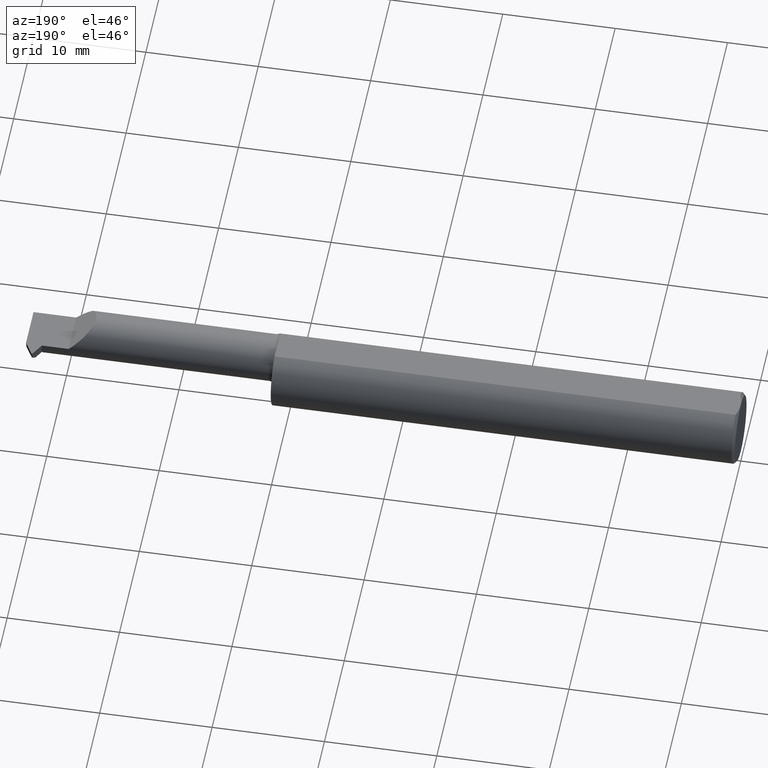
[diagram: clean part render]
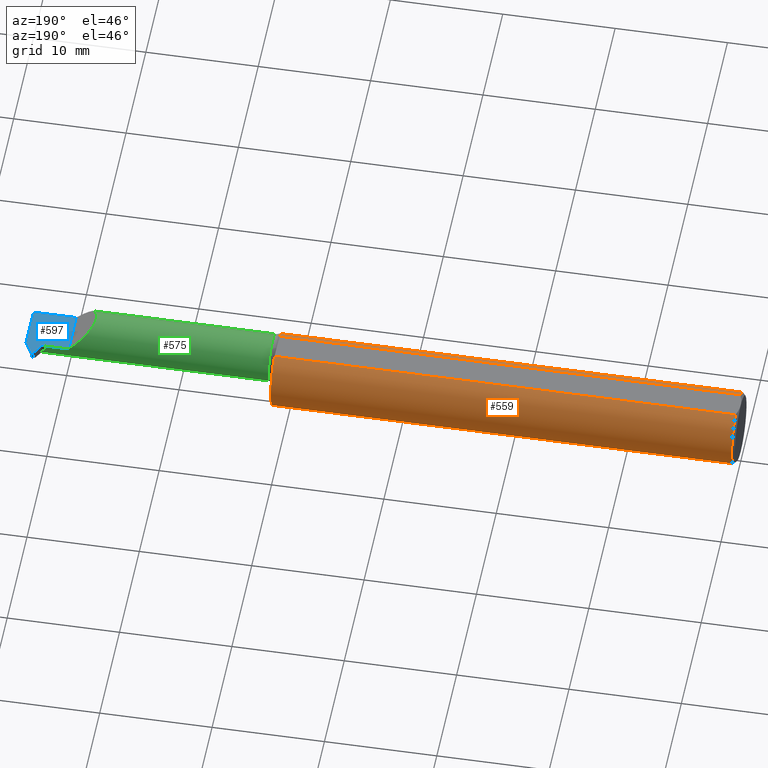
[diagram: same view with three faces highlighted in distinct colors, each labeled with its STEP entity id]
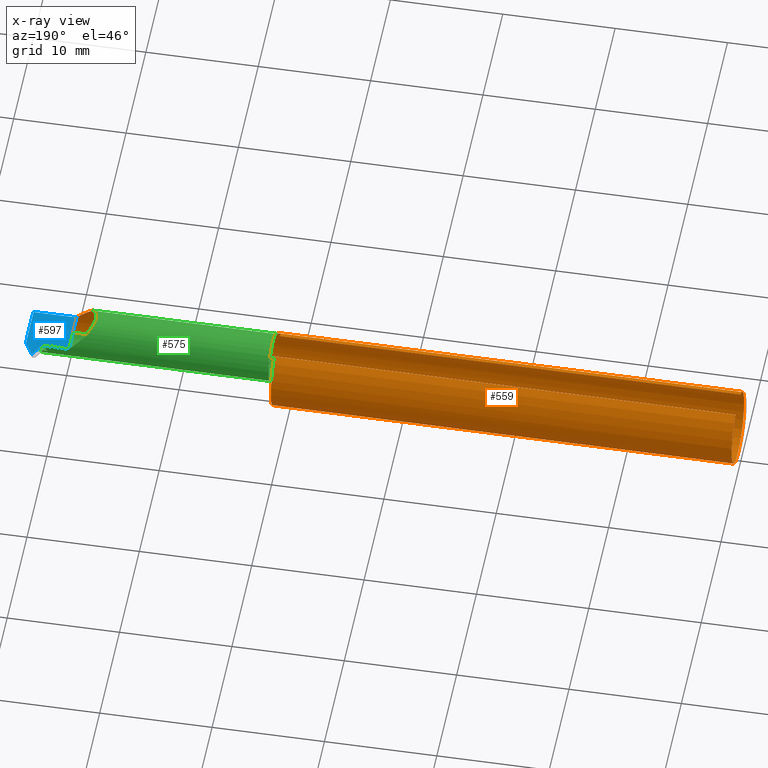
[diagram: x-ray of the same camera — body ghosted, the three highlighted faces saturated]
A machine part, auxiliary view with three faces highlighted in distinct colors.
The next image is the same camera in x-ray (body ghosted, the three faces saturated) — at least one of them is partly hidden behind the body in this view.
Their STEP definitions:

[orange] entity #559 — the highlighted cylindrical surface (edge-blend (fillet) strip) has radius 3.1712 mm, axis along (-1, -0, -0).
#11 = LINE ( 'NONE', #623, #122 ) ;
#16 = CARTESIAN_POINT ( 'NONE',  ( 0.01000000000000014939, 0.04895916665957469188, 0.1148499999999999521 ) ) ;
#21 = ORIENTED_EDGE ( 'NONE', *, *, #359, .F. ) ;
#22 = EDGE_CURVE ( 'NONE', #464, #62, #31, .T. ) ;
#27 = CARTESIAN_POINT ( 'NONE',  ( 1.625000000000000222, 0.000000000000000000, 0.000000000000000000 ) ) ;
#31 = B_SPLINE_CURVE_WITH_KNOTS ( 'NONE', 3,
 ( #235, #283, #782, #660, #123, #355, #490, #233, #358, #186, #727, #182 ),
 .UNSPECIFIED., .F., .F.,
 ( 4, 2, 2, 2, 2, 4 ),
 ( 1.963893730206868762E-07, 0.0002326901895015452302, 0.0004651839896300697676, 0.0009301715898871187882, 0.001395159190144167755, 0.001860146790401217371 ),
 .UNSPECIFIED. ) ;
#34 = CARTESIAN_POINT ( 'NONE',  ( 1.638167052038310478, -0.1047260336402098813, 0.06802262465471402286 ) ) ;
#45 = CARTESIAN_POINT ( 'NONE',  ( 1.625000000000000222, -0.06535139275766012334, 0.1063800637555460948 ) ) ;
#56 = EDGE_CURVE ( 'NONE', #240, #464, #731, .T. ) ;
#62 = VERTEX_POINT ( 'NONE', #106 ) ;
#63 = CYLINDRICAL_SURFACE ( 'NONE', #586, 0.1248500000000000026 ) ;
#64 = CIRCLE ( 'NONE', #100, 0.1248500000000000026 ) ;
#69 = CARTESIAN_POINT ( 'NONE',  ( 0.000000000000000000, -0.04895916665957469188, 0.1148499999999999521 ) ) ;
#76 = DIRECTION ( 'NONE',  ( 0.000000000000000000, 0.000000000000000000, 1.000000000000000000 ) ) ;
#81 = DIRECTION ( 'NONE',  ( 1.000000000000000000, 0.000000000000000000, 0.000000000000000000 ) ) ;
#86 = ORIENTED_EDGE ( 'NONE', *, *, #426, .T. ) ;
#92 = CARTESIAN_POINT ( 'NONE',  ( 1.650000000000000133, -0.1092232590529245845, 0.06047976671464373039 ) ) ;
#97 = DIRECTION ( 'NONE',  ( 0.000000000000000000, 0.000000000000000000, -1.000000000000000000 ) ) ;
#100 = AXIS2_PLACEMENT_3D ( 'NONE', #27, #517, #526 ) ;
#102 = CARTESIAN_POINT ( 'NONE',  ( 1.650000000000000133, -0.1092232590529245845, -0.06047976671464375814 ) ) ;
#105 = CARTESIAN_POINT ( 'NONE',  ( 2.308130552538913527, -0.1195282781184591331, 0.04186944746108606924 ) ) ;
#106 = CARTESIAN_POINT ( 'NONE',  ( 1.625000000000000222, -0.06535139275766012334, -0.1063800637555460948 ) ) ;
#110 = AXIS2_PLACEMENT_3D ( 'NONE', #437, #617, #76 ) ;
#115 = CARTESIAN_POINT ( 'NONE',  ( 2.328727073528534586, -0.1248500000000000026, 0.02127292647146517696 ) ) ;
#122 = VECTOR ( 'NONE', #195, 39.37007874015748143 ) ;
#123 = CARTESIAN_POINT ( 'NONE',  ( 1.638158879394964629, -0.1047178258151589963, -0.06803468955078927072 ) ) ;
#125 = DIRECTION ( 'NONE',  ( 0.000000000000000000, 0.000000000000000000, 1.000000000000000000 ) ) ;
#128 = DIRECTION ( 'NONE',  ( -1.000000000000000000, -0.000000000000000000, -0.000000000000000000 ) ) ;
#133 = CARTESIAN_POINT ( 'NONE',  ( 1.625000000000000222, -0.04895916665957479597, 0.1148499999999999521 ) ) ;
#145 = CARTESIAN_POINT ( 'NONE',  ( 1.644142011591955610, -0.1083236330372056855, 0.06211474020592992057 ) ) ;
#158 = VERTEX_POINT ( 'NONE', #557 ) ;
#162 = EDGE_CURVE ( 'NONE', #467, #199, #11, .T. ) ;
#166 = CARTESIAN_POINT ( 'NONE',  ( 0.01000000000000014939, -0.04895916665957469188, 0.1148499999999999521 ) ) ;
#181 = DIRECTION ( 'NONE',  ( 0.000000000000000000, 1.000000000000000000, 0.000000000000000000 ) ) ;
#182 = CARTESIAN_POINT ( 'NONE',  ( 1.625000000000000222, -0.06535139275766012334, -0.1063800637555460948 ) ) ;
#186 = CARTESIAN_POINT ( 'NONE',  ( 1.625408339284914794, -0.07550530485030243488, -0.09961131850206345062 ) ) ;
#191 = EDGE_CURVE ( 'NONE', #240, #634, #699, .T. ) ;
#195 = DIRECTION ( 'NONE',  ( -1.000000000000000000, -0.000000000000000000, -0.000000000000000000 ) ) ;
#196 = ORIENTED_EDGE ( 'NONE', *, *, #162, .F. ) ;
#199 = VERTEX_POINT ( 'NONE', #16 ) ;
#200 = CARTESIAN_POINT ( 'NONE',  ( 1.650000000000000133, -0.1092232590529245845, 0.06047976671464373039 ) ) ;
#207 = CIRCLE ( 'NONE', #339, 0.1248500000000000026 ) ;
#212 = CARTESIAN_POINT ( 'NONE',  ( 0.01000000000000014939, 0.000000000000000000, -0.1248500000000000026 ) ) ;
#214 = CARTESIAN_POINT ( 'NONE',  ( 1.626996939049467628, -0.08458882217984108054, 0.09202120527030370478 ) ) ;
#223 = CARTESIAN_POINT ( 'NONE',  ( 1.625400300771548068, -0.07542150831050739579, 0.09967330204894490897 ) ) ;
#233 = CARTESIAN_POINT ( 'NONE',  ( 1.628216217036756674, -0.08893970397226953761, -0.08781254252886017131 ) ) ;
#235 = CARTESIAN_POINT ( 'NONE',  ( 1.650000000000000133, -0.1092232590529245845, -0.06047976671464375814 ) ) ;
#240 = VERTEX_POINT ( 'NONE', #371 ) ;
#241 = CARTESIAN_POINT ( 'NONE',  ( 1.625000000000000222, 0.000000000000000000, 0.000000000000000000 ) ) ;
#246 = EDGE_CURVE ( 'NONE', #427, #551, #494, .T. ) ;
#247 = ORIENTED_EDGE ( 'NONE', *, *, #515, .F. ) ;
#250 = ORIENTED_EDGE ( 'NONE', *, *, #484, .T. ) ;
#253 = CARTESIAN_POINT ( 'NONE',  ( 2.500000000000000000, -0.1248500000000000026, 0.000000000000000000 ) ) ;
#269 = LINE ( 'NONE', #462, #523 ) ;
#273 = CARTESIAN_POINT ( 'NONE',  ( 1.625000000000000666, -0.07054241148902913594, 0.1031911175192887220 ) ) ;
#282 = CARTESIAN_POINT ( 'NONE',  ( 2.289520233285355921, -0.1092232590529246122, 0.06047976671464368875 ) ) ;
#283 = CARTESIAN_POINT ( 'NONE',  ( 1.646893101175497476, -0.1092232590529246261, -0.06047976671464372345 ) ) ;
#287 = CARTESIAN_POINT ( 'NONE',  ( 2.289520233285355921, -0.1092232590529246122, 0.06047976671464368875 ) ) ;
#293 = DIRECTION ( 'NONE',  ( 1.000000000000000000, 5.250126673606354578E-17, 0.000000000000000000 ) ) ;
#309 = EDGE_CURVE ( 'NONE', #427, #784, #666, .T. ) ;
#317 = EDGE_LOOP ( 'NONE', ( #343, #716, #672, #86, #524, #21, #795, #602, #706, #250, #196, #247, #364 ) ) ;
#335 = EDGE_CURVE ( 'NONE', #634, #158, #269, .T. ) ;
#339 = AXIS2_PLACEMENT_3D ( 'NONE', #544, #480, #659 ) ;
#341 = CARTESIAN_POINT ( 'NONE',  ( 1.625000000000000222, 0.04895916665957469188, 0.1148499999999999521 ) ) ;
#342 = EDGE_CURVE ( 'NONE', #551, #438, #64, .T. ) ;
#343 = ORIENTED_EDGE ( 'NONE', *, *, #56, .F. ) ;
#355 = CARTESIAN_POINT ( 'NONE',  ( 1.633707043473947795, -0.1002470790731816441, -0.07460645910502533562 ) ) ;
#358 = CARTESIAN_POINT ( 'NONE',  ( 1.627023439373509905, -0.08470251846230689163, -0.09191816578021552719 ) ) ;
#359 = EDGE_CURVE ( 'NONE', #438, #626, #360, .T. ) ;
#360 = B_SPLINE_CURVE_WITH_KNOTS ( 'NONE', 3,
 ( #761, #273, #223, #214, #519, #758, #763, #34, #522, #145, #632, #92 ),
 .UNSPECIFIED., .F., .F.,
 ( 4, 2, 2, 2, 2, 4 ),
 ( 3.030490085918935252E-05, 0.0004889370798616827487, 0.0009475692588641760738, 0.001406201437866669507, 0.001635517527367915790, 0.001864833616869162073 ),
 .UNSPECIFIED. ) ;
#364 = ORIENTED_EDGE ( 'NONE', *, *, #22, .F. ) ;
#365 = VECTOR ( 'NONE', #786, 39.37007874015748143 ) ;
#371 = CARTESIAN_POINT ( 'NONE',  ( 2.500000000000000000, -0.1092232590529245845, -0.06047976671464362630 ) ) ;
#382 = DIRECTION ( 'NONE',  ( 1.000000000000000000, 0.000000000000000000, 0.000000000000000000 ) ) ;
#391 = EDGE_CURVE ( 'NONE', #626, #470, #707, .T. ) ;
#396 = CARTESIAN_POINT ( 'NONE',  ( 2.044015190534282489, -0.1092232590529246122, 0.06047976671464369569 ) ) ;
#426 = EDGE_CURVE ( 'NONE', #158, #470, #796, .T. ) ;
#427 = VERTEX_POINT ( 'NONE', #166 ) ;
#437 = CARTESIAN_POINT ( 'NONE',  ( 2.500000000000000000, 0.000000000000000000, 0.000000000000000000 ) ) ;
#438 = VERTEX_POINT ( 'NONE', #45 ) ;
#462 = CARTESIAN_POINT ( 'NONE',  ( 3.749399456654640735E-32, -0.1248499999999999888, 3.061616997868381169E-16 ) ) ;
#464 = VERTEX_POINT ( 'NONE', #102 ) ;
#467 = VERTEX_POINT ( 'NONE', #341 ) ;
#470 = VERTEX_POINT ( 'NONE', #287 ) ;
#480 = DIRECTION ( 'NONE',  ( 1.000000000000000000, 0.000000000000000000, 0.000000000000000000 ) ) ;
#484 = EDGE_CURVE ( 'NONE', #784, #199, #207, .T. ) ;
#490 = CARTESIAN_POINT ( 'NONE',  ( 1.631574539397729673, -0.09671433139090018782, -0.07916850176471039446 ) ) ;
#494 = LINE ( 'NONE', #69, #637 ) ;
#502 = CARTESIAN_POINT ( 'NONE',  ( 0.000000000000000000, 0.000000000000000000, 0.000000000000000000 ) ) ;
#506 = VECTOR ( 'NONE', #719, 39.37007874015748143 ) ;
#514 = DIRECTION ( 'NONE',  ( -1.000000000000000000, -0.000000000000000000, -0.000000000000000000 ) ) ;
#515 = EDGE_CURVE ( 'NONE', #62, #467, #755, .T. ) ;
#517 = DIRECTION ( 'NONE',  ( 1.000000000000000000, 5.250126673606354578E-17, 0.000000000000000000 ) ) ;
#519 = CARTESIAN_POINT ( 'NONE',  ( 1.628207506445968011, -0.08891621056625824415, 0.08783733555405201510 ) ) ;
#522 = CARTESIAN_POINT ( 'NONE',  ( 1.639872773867705913, -0.1060950243526074810, 0.06584904124472104603 ) ) ;
#523 = VECTOR ( 'NONE', #514, 39.37007874015748143 ) ;
#524 = ORIENTED_EDGE ( 'NONE', *, *, #391, .F. ) ;
#526 = DIRECTION ( 'NONE',  ( 0.000000000000000000, 1.000000000000000000, 0.000000000000000000 ) ) ;
#544 = CARTESIAN_POINT ( 'NONE',  ( 0.01000000000000014939, 0.000000000000000000, 0.000000000000000000 ) ) ;
#551 = VERTEX_POINT ( 'NONE', #133 ) ;
#557 = CARTESIAN_POINT ( 'NONE',  ( 2.350000000000000089, -0.1248500000000000165, 1.836970198721029441E-17 ) ) ;
#559 = ADVANCED_FACE ( 'NONE', ( #622 ), #63, .T. ) ;
#586 = AXIS2_PLACEMENT_3D ( 'NONE', #502, #128, #125 ) ;
#602 = ORIENTED_EDGE ( 'NONE', *, *, #246, .F. ) ;
#613 = AXIS2_PLACEMENT_3D ( 'NONE', #241, #293, #181 ) ;
#617 = DIRECTION ( 'NONE',  ( -1.000000000000000000, -0.000000000000000000, -0.000000000000000000 ) ) ;
#622 = FACE_OUTER_BOUND ( 'NONE', #317, .T. ) ;
#623 = CARTESIAN_POINT ( 'NONE',  ( 0.000000000000000000, 0.04895916665957469188, 0.1148499999999999521 ) ) ;
#626 = VERTEX_POINT ( 'NONE', #200 ) ;
#632 = CARTESIAN_POINT ( 'NONE',  ( 1.646904167968482824, -0.1092232590529396835, 0.06047976671461666870 ) ) ;
#634 = VERTEX_POINT ( 'NONE', #253 ) ;
#637 = VECTOR ( 'NONE', #81, 39.37007874015748143 ) ;
#646 = CARTESIAN_POINT ( 'NONE',  ( 0.01000000000000014939, 0.000000000000000000, 0.000000000000000000 ) ) ;
#659 = DIRECTION ( 'NONE',  ( 0.000000000000000000, 0.000000000000000000, -1.000000000000000000 ) ) ;
#660 = CARTESIAN_POINT ( 'NONE',  ( 1.639871114993082468, -0.1060941439957361898, -0.06585051326907734315 ) ) ;
#666 = CIRCLE ( 'NONE', #768, 0.1248500000000000026 ) ;
#672 = ORIENTED_EDGE ( 'NONE', *, *, #335, .T. ) ;
#699 = CIRCLE ( 'NONE', #110, 0.1248500000000000026 ) ;
#706 = ORIENTED_EDGE ( 'NONE', *, *, #309, .T. ) ;
#707 = LINE ( 'NONE', #396, #365 ) ;
#716 = ORIENTED_EDGE ( 'NONE', *, *, #191, .T. ) ;
#719 = DIRECTION ( 'NONE',  ( -1.000000000000000000, -5.250126673606354578E-17, -0.000000000000000000 ) ) ;
#723 = CARTESIAN_POINT ( 'NONE',  ( 2.044015190534282489, -0.1092232590529246122, -0.06047976671464369569 ) ) ;
#726 = CARTESIAN_POINT ( 'NONE',  ( 2.350000000000000089, -0.1248500000000000165, 1.836970198721029441E-17 ) ) ;
#727 = CARTESIAN_POINT ( 'NONE',  ( 1.624999999999999778, -0.07054286491584016439, -0.1031908389701642337 ) ) ;
#731 = LINE ( 'NONE', #723, #506 ) ;
#755 = CIRCLE ( 'NONE', #613, 0.1248500000000000026 ) ;
#758 = CARTESIAN_POINT ( 'NONE',  ( 1.631572284412210472, -0.09671242829710847977, 0.07917194093600943283 ) ) ;
#761 = CARTESIAN_POINT ( 'NONE',  ( 1.625000000000000222, -0.06535139275766012334, 0.1063800637555460948 ) ) ;
#763 = CARTESIAN_POINT ( 'NONE',  ( 1.633690689866804435, -0.1002306550648289635, 0.07463060118330293313 ) ) ;
#768 = AXIS2_PLACEMENT_3D ( 'NONE', #646, #382, #97 ) ;
#782 = CARTESIAN_POINT ( 'NONE',  ( 1.644143490399571750, -0.1083244193956948292, -0.06211342568700069233 ) ) ;
#784 = VERTEX_POINT ( 'NONE', #212 ) ;
#786 = DIRECTION ( 'NONE',  ( 1.000000000000000000, 5.250126673606354578E-17, 0.000000000000000000 ) ) ;
#795 = ORIENTED_EDGE ( 'NONE', *, *, #342, .F. ) ;
#796 =( BOUNDED_CURVE ( )  B_SPLINE_CURVE ( 3, ( #726, #115, #105, #282 ),
 .UNSPECIFIED., .F., .F. ) 
 B_SPLINE_CURVE_WITH_KNOTS ( ( 4, 4 ),
 ( 4.712388980384689674, 5.218088401039802093 ),
 .UNSPECIFIED. ) 
 CURVE ( )  GEOMETRIC_REPRESENTATION_ITEM ( )  RATIONAL_B_SPLINE_CURVE ( ( 1.000000000000000000, 0.9788023059027125550, 0.9788023059027125550, 1.000000000000000000 ) ) 
 REPRESENTATION_ITEM ( '' )  );

[blue] entity #597 — the highlighted planar face has unit normal (-0, 0, -1).
#28 = EDGE_CURVE ( 'NONE', #51, #748, #59, .T. ) ;
#42 = VECTOR ( 'NONE', #629, 39.37007874015748143 ) ;
#47 = DIRECTION ( 'NONE',  ( 1.000000000000000000, 5.250126673606354578E-17, 0.000000000000000000 ) ) ;
#51 = VERTEX_POINT ( 'NONE', #117 ) ;
#59 = LINE ( 'NONE', #473, #643 ) ;
#72 = DIRECTION ( 'NONE',  ( -1.224646799147352961E-16, 0.000000000000000000, -1.000000000000000000 ) ) ;
#74 = ORIENTED_EDGE ( 'NONE', *, *, #28, .F. ) ;
#80 = CARTESIAN_POINT ( 'NONE',  ( 2.433030381068565173, 0.02814999999999999447, 0.000000000000000000 ) ) ;
#90 = EDGE_CURVE ( 'NONE', #748, #157, #126, .T. ) ;
#93 = VECTOR ( 'NONE', #47, 39.37007874015748143 ) ;
#116 = VECTOR ( 'NONE', #274, 39.37007874015748143 ) ;
#117 = CARTESIAN_POINT ( 'NONE',  ( 2.443769237886467049, 0.02814999999999999100, 0.000000000000000000 ) ) ;
#126 = LINE ( 'NONE', #429, #93 ) ;
#140 = CARTESIAN_POINT ( 'NONE',  ( 2.500000000000000000, 0.02508559008996252837, 0.000000000000000000 ) ) ;
#146 = ORIENTED_EDGE ( 'NONE', *, *, #478, .F. ) ;
#153 = CARTESIAN_POINT ( 'NONE',  ( 2.500000000000000000, 0.000000000000000000, 0.000000000000000000 ) ) ;
#157 = VERTEX_POINT ( 'NONE', #503 ) ;
#158 = VERTEX_POINT ( 'NONE', #557 ) ;
#168 = DIRECTION ( 'NONE',  ( 0.4999999999999963918, 0.8660254037844405950, -0.000000000000000000 ) ) ;
#194 = FACE_OUTER_BOUND ( 'NONE', #280, .T. ) ;
#219 = DIRECTION ( 'NONE',  ( 0.000000000000000000, -1.000000000000000000, 0.000000000000000000 ) ) ;
#220 = VERTEX_POINT ( 'NONE', #140 ) ;
#231 = EDGE_CURVE ( 'NONE', #648, #51, #363, .T. ) ;
#253 = CARTESIAN_POINT ( 'NONE',  ( 2.500000000000000000, -0.1248500000000000026, 0.000000000000000000 ) ) ;
#256 = ORIENTED_EDGE ( 'NONE', *, *, #231, .F. ) ;
#264 = ORIENTED_EDGE ( 'NONE', *, *, #387, .F. ) ;
#269 = LINE ( 'NONE', #462, #523 ) ;
#274 = DIRECTION ( 'NONE',  ( 1.000000000000000000, 5.250126673606354578E-17, 0.000000000000000000 ) ) ;
#280 = EDGE_LOOP ( 'NONE', ( #356, #74, #256, #460, #588, #572, #264, #146 ) ) ;
#284 = EDGE_CURVE ( 'NONE', #735, #648, #453, .T. ) ;
#290 = LINE ( 'NONE', #418, #652 ) ;
#302 = DIRECTION ( 'NONE',  ( -1.000000000000000000, 0.000000000000000000, 1.224646799147352961E-16 ) ) ;
#329 = VECTOR ( 'NONE', #535, 39.37007874015748143 ) ;
#335 = EDGE_CURVE ( 'NONE', #634, #158, #269, .T. ) ;
#356 = ORIENTED_EDGE ( 'NONE', *, *, #90, .F. ) ;
#363 = LINE ( 'NONE', #553, #42 ) ;
#387 = EDGE_CURVE ( 'NONE', #220, #634, #705, .T. ) ;
#418 = CARTESIAN_POINT ( 'NONE',  ( 2.350000000000000089, -0.2500000000000000555, 1.836970198721029441E-17 ) ) ;
#428 = PLANE ( 'NONE',  #457 ) ;
#429 = CARTESIAN_POINT ( 'NONE',  ( 1.625000000000000222, 0.07314999999999995117, 1.071565949253933286E-16 ) ) ;
#452 = CARTESIAN_POINT ( 'NONE',  ( 2.469749999999999890, 0.07314999999999999281, 0.000000000000000000 ) ) ;
#453 = LINE ( 'NONE', #697, #116 ) ;
#457 = AXIS2_PLACEMENT_3D ( 'NONE', #489, #72, #302 ) ;
#460 = ORIENTED_EDGE ( 'NONE', *, *, #284, .F. ) ;
#462 = CARTESIAN_POINT ( 'NONE',  ( 3.749399456654640735E-32, -0.1248499999999999888, 3.061616997868381169E-16 ) ) ;
#473 = CARTESIAN_POINT ( 'NONE',  ( 2.469749999999999890, 0.07314999999999999281, 0.000000000000000000 ) ) ;
#478 = EDGE_CURVE ( 'NONE', #157, #220, #669, .T. ) ;
#489 = CARTESIAN_POINT ( 'NONE',  ( 2.500000000000000000, -0.2500000000000000555, 0.000000000000000000 ) ) ;
#500 = EDGE_CURVE ( 'NONE', #158, #735, #290, .T. ) ;
#503 = CARTESIAN_POINT ( 'NONE',  ( 2.472249999999999837, 0.07314999999999999281, 0.000000000000000000 ) ) ;
#514 = DIRECTION ( 'NONE',  ( -1.000000000000000000, -0.000000000000000000, -0.000000000000000000 ) ) ;
#516 = CARTESIAN_POINT ( 'NONE',  ( 2.350000000000000089, 0.02814999999999999100, 1.071565949253933286E-16 ) ) ;
#523 = VECTOR ( 'NONE', #514, 39.37007874015748143 ) ;
#535 = DIRECTION ( 'NONE',  ( 0.4999999999999948375, -0.8660254037844417052, 0.000000000000000000 ) ) ;
#553 = CARTESIAN_POINT ( 'NONE',  ( 2.443769237886467049, 0.02814999999999999100, 0.000000000000000000 ) ) ;
#557 = CARTESIAN_POINT ( 'NONE',  ( 2.350000000000000089, -0.1248500000000000165, 1.836970198721029441E-17 ) ) ;
#572 = ORIENTED_EDGE ( 'NONE', *, *, #335, .F. ) ;
#588 = ORIENTED_EDGE ( 'NONE', *, *, #500, .F. ) ;
#597 = ADVANCED_FACE ( 'NONE', ( #194 ), #428, .F. ) ;
#629 = DIRECTION ( 'NONE',  ( 1.000000000000000000, -3.974829502321529029E-16, -0.000000000000000000 ) ) ;
#634 = VERTEX_POINT ( 'NONE', #253 ) ;
#643 = VECTOR ( 'NONE', #168, 39.37007874015748854 ) ;
#648 = VERTEX_POINT ( 'NONE', #80 ) ;
#652 = VECTOR ( 'NONE', #663, 39.37007874015748143 ) ;
#663 = DIRECTION ( 'NONE',  ( -0.000000000000000000, 1.000000000000000000, -0.000000000000000000 ) ) ;
#669 = LINE ( 'NONE', #792, #329 ) ;
#697 = CARTESIAN_POINT ( 'NONE',  ( 1.625000000000000222, 0.02814999999999995284, 1.071565949253933286E-16 ) ) ;
#705 = LINE ( 'NONE', #153, #718 ) ;
#718 = VECTOR ( 'NONE', #219, 39.37007874015748143 ) ;
#735 = VERTEX_POINT ( 'NONE', #516 ) ;
#748 = VERTEX_POINT ( 'NONE', #452 ) ;
#792 = CARTESIAN_POINT ( 'NONE',  ( 2.472249999999999837, 0.07314999999999999281, 0.000000000000000000 ) ) ;

[green] entity #575 — the highlighted cylindrical surface (edge-blend (fillet) strip) has radius 2.0828 mm, axis along (-1, -0, -0).
#2 = CARTESIAN_POINT ( 'NONE',  ( 1.625000000000000222, -0.05385000000000010612, 0.000000000000000000 ) ) ;
#3 = CARTESIAN_POINT ( 'NONE',  ( 2.452452630173280745, -0.02103119801956336923, -0.07699899284797005750 ) ) ;
#6 = FACE_OUTER_BOUND ( 'NONE', #324, .T. ) ;
#15 = CARTESIAN_POINT ( 'NONE',  ( 2.451234871023850292, -0.007219850294038227673, -0.06745093875106218662 ) ) ;
#17 = ORIENTED_EDGE ( 'NONE', *, *, #615, .F. ) ;
#25 =( BOUNDED_CURVE ( )  B_SPLINE_CURVE ( 3, ( #297, #415, #347, #596 ),
 .UNSPECIFIED., .F., .T. ) 
 B_SPLINE_CURVE_WITH_KNOTS ( ( 4, 4 ),
 ( 3.543943011109390362, 3.546790974617834546 ),
 .UNSPECIFIED. ) 
 CURVE ( )  GEOMETRIC_REPRESENTATION_ITEM ( )  RATIONAL_B_SPLINE_CURVE ( ( 1.000000000000000000, 0.9999993240921020154, 0.9999993240921020154, 1.000000000000000000 ) ) 
 REPRESENTATION_ITEM ( '' )  );
#54 = DIRECTION ( 'NONE',  ( 1.000000000000000000, 0.000000000000000000, 0.000000000000000000 ) ) ;
#55 = AXIS2_PLACEMENT_3D ( 'NONE', #239, #425, #565 ) ;
#56 = EDGE_CURVE ( 'NONE', #240, #464, #731, .T. ) ;
#60 = EDGE_CURVE ( 'NONE', #124, #648, #469, .T. ) ;
#61 =( BOUNDED_CURVE ( )  B_SPLINE_CURVE ( 3, ( #545, #601, #541, #177 ),
 .UNSPECIFIED., .F., .T. ) 
 B_SPLINE_CURVE_WITH_KNOTS ( ( 4, 4 ),
 ( 4.508237422836256947, 4.533492732055270480 ),
 .UNSPECIFIED. ) 
 CURVE ( )  GEOMETRIC_REPRESENTATION_ITEM ( )  RATIONAL_B_SPLINE_CURVE ( ( 1.000000000000000000, 0.9999468481526490038, 0.9999468481526490038, 1.000000000000000000 ) ) 
 REPRESENTATION_ITEM ( '' )  );
#66 = EDGE_CURVE ( 'NONE', #528, #555, #25, .T. ) ;
#71 = VERTEX_POINT ( 'NONE', #549 ) ;
#75 = DIRECTION ( 'NONE',  ( 0.000000000000000000, -1.000000000000000000, 0.000000000000000000 ) ) ;
#77 = VECTOR ( 'NONE', #580, 39.37007874015748143 ) ;
#80 = CARTESIAN_POINT ( 'NONE',  ( 2.433030381068565173, 0.02814999999999999447, 0.000000000000000000 ) ) ;
#83 = CARTESIAN_POINT ( 'NONE',  ( 2.453558178717973437, -0.05385000000000006448, -0.08200000000000007283 ) ) ;
#96 = CARTESIAN_POINT ( 'NONE',  ( 2.451234871023850292, -0.007219850294038227673, -0.06745093875106218662 ) ) ;
#102 = CARTESIAN_POINT ( 'NONE',  ( 1.650000000000000133, -0.1092232590529245845, -0.06047976671464375814 ) ) ;
#104 = EDGE_CURVE ( 'NONE', #528, #369, #61, .T. ) ;
#112 = CARTESIAN_POINT ( 'NONE',  ( 2.433030381068565173, 0.02814999999999999447, 0.000000000000000000 ) ) ;
#116 = VECTOR ( 'NONE', #274, 39.37007874015748143 ) ;
#118 = EDGE_CURVE ( 'NONE', #555, #630, #440, .T. ) ;
#124 = VERTEX_POINT ( 'NONE', #690 ) ;
#135 = ORIENTED_EDGE ( 'NONE', *, *, #284, .T. ) ;
#144 = CARTESIAN_POINT ( 'NONE',  ( 2.450332701925785450, -0.01228205133668518016, -0.07095053707884105276 ) ) ;
#173 = CARTESIAN_POINT ( 'NONE',  ( 2.431252431409448800, 0.02815000000000000835, -0.009832190419034481793 ) ) ;
#177 = CARTESIAN_POINT ( 'NONE',  ( 2.446767348830406696, 0.02295711951836949122, -0.02871700526327666467 ) ) ;
#178 = ORIENTED_EDGE ( 'NONE', *, *, #60, .F. ) ;
#185 = CARTESIAN_POINT ( 'NONE',  ( 1.650000000000000133, -0.05385000000000010612, 0.000000000000000000 ) ) ;
#187 = ORIENTED_EDGE ( 'NONE', *, *, #104, .F. ) ;
#190 = CARTESIAN_POINT ( 'NONE',  ( 2.350000000000000089, 0.02814999999999999100, 1.071565949253933286E-16 ) ) ;
#193 = CIRCLE ( 'NONE', #275, 0.08200000000000007283 ) ;
#200 = CARTESIAN_POINT ( 'NONE',  ( 1.650000000000000133, -0.1092232590529245845, 0.06047976671464373039 ) ) ;
#209 = EDGE_CURVE ( 'NONE', #470, #735, #605, .T. ) ;
#218 = VECTOR ( 'NONE', #570, 39.37007874015748143 ) ;
#225 =( BOUNDED_CURVE ( )  B_SPLINE_CURVE ( 3, ( #620, #561, #3, #255 ),
 .UNSPECIFIED., .F., .F. ) 
 B_SPLINE_CURVE_WITH_KNOTS ( ( 4, 4 ),
 ( 3.320488901919211866, 3.925365243094500300 ),
 .UNSPECIFIED. ) 
 CURVE ( )  GEOMETRIC_REPRESENTATION_ITEM ( )  RATIONAL_B_SPLINE_CURVE ( ( 1.000000000000000000, 0.9697420810547336956, 0.9697420810547336956, 1.000000000000000000 ) ) 
 REPRESENTATION_ITEM ( '' )  );
#239 = CARTESIAN_POINT ( 'NONE',  ( 2.446901295964723833, -0.05385000000000006448, 0.000000000000000000 ) ) ;
#240 = VERTEX_POINT ( 'NONE', #371 ) ;
#254 = EDGE_CURVE ( 'NONE', #369, #124, #319, .T. ) ;
#255 = CARTESIAN_POINT ( 'NONE',  ( 2.451234871023850292, -0.007219850294038227673, -0.06745093875106218662 ) ) ;
#257 = EDGE_CURVE ( 'NONE', #685, #621, #225, .T. ) ;
#259 = CARTESIAN_POINT ( 'NONE',  ( 2.266883813472912124, 0.02814999999999999100, 0.08311618652708725741 ) ) ;
#274 = DIRECTION ( 'NONE',  ( 1.000000000000000000, 5.250126673606354578E-17, 0.000000000000000000 ) ) ;
#275 = AXIS2_PLACEMENT_3D ( 'NONE', #185, #373, #616 ) ;
#284 = EDGE_CURVE ( 'NONE', #735, #648, #453, .T. ) ;
#287 = CARTESIAN_POINT ( 'NONE',  ( 2.289520233285355921, -0.1092232590529246122, 0.06047976671464368875 ) ) ;
#297 = CARTESIAN_POINT ( 'NONE',  ( 2.446976212146491303, 0.02220744610134757491, -0.03064742880798617536 ) ) ;
#300 = AXIS2_PLACEMENT_3D ( 'NONE', #604, #54, #777 ) ;
#308 = ORIENTED_EDGE ( 'NONE', *, *, #118, .T. ) ;
#319 = LINE ( 'NONE', #677, #218 ) ;
#324 = EDGE_LOOP ( 'NONE', ( #308, #404, #583, #610, #383, #710, #17, #589, #607, #135, #178, #344, #187, #361 ) ) ;
#344 = ORIENTED_EDGE ( 'NONE', *, *, #254, .F. ) ;
#347 = CARTESIAN_POINT ( 'NONE',  ( 2.446926351246418996, 0.02226553178175602610, -0.03050298151534071994 ) ) ;
#361 = ORIENTED_EDGE ( 'NONE', *, *, #66, .T. ) ;
#365 = VECTOR ( 'NONE', #786, 39.37007874015748143 ) ;
#369 = VERTEX_POINT ( 'NONE', #454 ) ;
#371 = CARTESIAN_POINT ( 'NONE',  ( 2.500000000000000000, -0.1092232590529245845, -0.06047976671464362630 ) ) ;
#373 = DIRECTION ( 'NONE',  ( -1.000000000000000000, -5.250126673606354578E-17, -0.000000000000000000 ) ) ;
#383 = ORIENTED_EDGE ( 'NONE', *, *, #510, .F. ) ;
#384 = LINE ( 'NONE', #635, #77 ) ;
#391 = EDGE_CURVE ( 'NONE', #626, #470, #707, .T. ) ;
#396 = CARTESIAN_POINT ( 'NONE',  ( 2.044015190534282489, -0.1092232590529246122, 0.06047976671464369569 ) ) ;
#404 = ORIENTED_EDGE ( 'NONE', *, *, #742, .T. ) ;
#409 = CARTESIAN_POINT ( 'NONE',  ( 2.429502856586511328, 0.02640042517706308114, -0.01950746593837232243 ) ) ;
#410 =( BOUNDED_CURVE ( )  B_SPLINE_CURVE ( 3, ( #456, #696, #144, #96 ),
 .UNSPECIFIED., .F., .T. ) 
 B_SPLINE_CURVE_WITH_KNOTS ( ( 4, 4 ),
 ( 2.736394332561752130, 2.961070831367632827 ),
 .UNSPECIFIED. ) 
 CURVE ( )  GEOMETRIC_REPRESENTATION_ITEM ( )  RATIONAL_B_SPLINE_CURVE ( ( 1.000000000000000000, 0.9957977946417075898, 0.9957977946417075898, 1.000000000000000000 ) ) 
 REPRESENTATION_ITEM ( '' )  );
#415 = CARTESIAN_POINT ( 'NONE',  ( 2.446951323323887095, 0.02223654036413786478, -0.03057522583990423051 ) ) ;
#425 = DIRECTION ( 'NONE',  ( -1.000000000000000000, -0.000000000000000000, -0.000000000000000000 ) ) ;
#431 = CARTESIAN_POINT ( 'NONE',  ( 2.446901295964723833, 0.02229442029541568726, -0.03043069598078725069 ) ) ;
#439 = DIRECTION ( 'NONE',  ( -1.000000000000000000, -5.250126673606354578E-17, -0.000000000000000000 ) ) ;
#440 = CIRCLE ( 'NONE', #55, 0.08200000000000007283 ) ;
#441 = CARTESIAN_POINT ( 'NONE',  ( 2.289520233285355921, -0.1092232590529246122, 0.06047976671464368875 ) ) ;
#444 = CARTESIAN_POINT ( 'NONE',  ( 2.233393231723701522, -0.04792023988988758365, 0.1166067682762972624 ) ) ;
#453 = LINE ( 'NONE', #697, #116 ) ;
#454 = CARTESIAN_POINT ( 'NONE',  ( 2.446767348830406696, 0.02295711951836949122, -0.02871700526327666467 ) ) ;
#456 = CARTESIAN_POINT ( 'NONE',  ( 2.446901295964723833, -0.02341930401921280686, -0.07614442029541573786 ) ) ;
#464 = VERTEX_POINT ( 'NONE', #102 ) ;
#469 =( BOUNDED_CURVE ( )  B_SPLINE_CURVE ( 3, ( #481, #409, #173, #112 ),
 .UNSPECIFIED., .F., .T. ) 
 B_SPLINE_CURVE_WITH_KNOTS ( ( 4, 4 ),
 ( 1.213003830136024641, 1.570796326794863029 ),
 .UNSPECIFIED. ) 
 CURVE ( )  GEOMETRIC_REPRESENTATION_ITEM ( )  RATIONAL_B_SPLINE_CURVE ( ( 1.000000000000000000, 0.9893604650975271753, 0.9893604650975271753, 1.000000000000000000 ) ) 
 REPRESENTATION_ITEM ( '' )  );
#470 = VERTEX_POINT ( 'NONE', #287 ) ;
#481 = CARTESIAN_POINT ( 'NONE',  ( 2.427837500586933484, 0.02295711951836856488, -0.02871700526327648079 ) ) ;
#485 = CARTESIAN_POINT ( 'NONE',  ( 2.446976212146491303, 0.02220744610134757491, -0.03064742880798617536 ) ) ;
#506 = VECTOR ( 'NONE', #719, 39.37007874015748143 ) ;
#510 = EDGE_CURVE ( 'NONE', #240, #71, #577, .T. ) ;
#516 = CARTESIAN_POINT ( 'NONE',  ( 2.350000000000000089, 0.02814999999999999100, 1.071565949253933286E-16 ) ) ;
#528 = VERTEX_POINT ( 'NONE', #485 ) ;
#541 = CARTESIAN_POINT ( 'NONE',  ( 2.446837138557887759, 0.02271536081068166804, -0.02936361829919983263 ) ) ;
#545 = CARTESIAN_POINT ( 'NONE',  ( 2.446976212146491303, 0.02220744610134757491, -0.03064742880798617536 ) ) ;
#549 = CARTESIAN_POINT ( 'NONE',  ( 2.500000000000000000, -0.05384999999999993264, -0.08200000000000007283 ) ) ;
#555 = VERTEX_POINT ( 'NONE', #431 ) ;
#561 = CARTESIAN_POINT ( 'NONE',  ( 2.453251230041400888, -0.03705956632386033650, -0.08200000000000007283 ) ) ;
#565 = DIRECTION ( 'NONE',  ( 0.000000000000000000, 1.769871032480656849E-15, -1.000000000000000000 ) ) ;
#570 = DIRECTION ( 'NONE',  ( -1.000000000000000000, -5.250126673606354578E-17, -0.000000000000000000 ) ) ;
#575 = ADVANCED_FACE ( 'NONE', ( #6 ), #746, .T. ) ;
#577 = CIRCLE ( 'NONE', #300, 0.08200000000000005895 ) ;
#580 = DIRECTION ( 'NONE',  ( -1.000000000000000000, -0.000000000000000000, -0.000000000000000000 ) ) ;
#583 = ORIENTED_EDGE ( 'NONE', *, *, #257, .F. ) ;
#589 = ORIENTED_EDGE ( 'NONE', *, *, #391, .T. ) ;
#596 = CARTESIAN_POINT ( 'NONE',  ( 2.446901295964723833, 0.02229442029541568726, -0.03043069598078725069 ) ) ;
#601 = CARTESIAN_POINT ( 'NONE',  ( 2.446906763363936310, 0.02246545638879303072, -0.03000712701778029609 ) ) ;
#604 = CARTESIAN_POINT ( 'NONE',  ( 2.500000000000000000, -0.05385000000000006448, 0.000000000000000000 ) ) ;
#605 =( BOUNDED_CURVE ( )  B_SPLINE_CURVE ( 3, ( #441, #444, #259, #190 ),
 .UNSPECIFIED., .F., .T. ) 
 B_SPLINE_CURVE_WITH_KNOTS ( ( 4, 4 ),
 ( 5.541836096877574391, 7.853981633974482790 ),
 .UNSPECIFIED. ) 
 CURVE ( )  GEOMETRIC_REPRESENTATION_ITEM ( )  RATIONAL_B_SPLINE_CURVE ( ( 1.000000000000000000, 0.6019579590817374370, 0.6019579590817374370, 1.000000000000000000 ) ) 
 REPRESENTATION_ITEM ( '' )  );
#607 = ORIENTED_EDGE ( 'NONE', *, *, #209, .T. ) ;
#610 = ORIENTED_EDGE ( 'NONE', *, *, #764, .F. ) ;
#615 = EDGE_CURVE ( 'NONE', #626, #464, #193, .T. ) ;
#616 = DIRECTION ( 'NONE',  ( 0.000000000000000000, -1.000000000000000000, 0.000000000000000000 ) ) ;
#620 = CARTESIAN_POINT ( 'NONE',  ( 2.453558178717973437, -0.05385000000000006448, -0.08200000000000007283 ) ) ;
#621 = VERTEX_POINT ( 'NONE', #15 ) ;
#626 = VERTEX_POINT ( 'NONE', #200 ) ;
#630 = VERTEX_POINT ( 'NONE', #682 ) ;
#635 = CARTESIAN_POINT ( 'NONE',  ( 2.638030381068564800, -0.05384999999999993264, -0.08200000000000007283 ) ) ;
#648 = VERTEX_POINT ( 'NONE', #80 ) ;
#677 = CARTESIAN_POINT ( 'NONE',  ( 1.625000000000000222, 0.02295711951836923448, -0.02871700526327457259 ) ) ;
#682 = CARTESIAN_POINT ( 'NONE',  ( 2.446901295964723833, -0.02341930401921280686, -0.07614442029541573786 ) ) ;
#685 = VERTEX_POINT ( 'NONE', #83 ) ;
#690 = CARTESIAN_POINT ( 'NONE',  ( 2.427837500586933484, 0.02295711951836856488, -0.02871700526327648079 ) ) ;
#696 = CARTESIAN_POINT ( 'NONE',  ( 2.448882081099467367, -0.01770465614405420524, -0.07386059291250929304 ) ) ;
#697 = CARTESIAN_POINT ( 'NONE',  ( 1.625000000000000222, 0.02814999999999995284, 1.071565949253933286E-16 ) ) ;
#707 = LINE ( 'NONE', #396, #365 ) ;
#710 = ORIENTED_EDGE ( 'NONE', *, *, #56, .T. ) ;
#719 = DIRECTION ( 'NONE',  ( -1.000000000000000000, -5.250126673606354578E-17, -0.000000000000000000 ) ) ;
#723 = CARTESIAN_POINT ( 'NONE',  ( 2.044015190534282489, -0.1092232590529246122, -0.06047976671464369569 ) ) ;
#731 = LINE ( 'NONE', #723, #506 ) ;
#735 = VERTEX_POINT ( 'NONE', #516 ) ;
#742 = EDGE_CURVE ( 'NONE', #630, #621, #410, .T. ) ;
#746 = CYLINDRICAL_SURFACE ( 'NONE', #779, 0.08200000000000007283 ) ;
#764 = EDGE_CURVE ( 'NONE', #71, #685, #384, .T. ) ;
#777 = DIRECTION ( 'NONE',  ( 0.000000000000000000, 0.000000000000000000, 1.000000000000000000 ) ) ;
#779 = AXIS2_PLACEMENT_3D ( 'NONE', #2, #439, #75 ) ;
#786 = DIRECTION ( 'NONE',  ( 1.000000000000000000, 5.250126673606354578E-17, 0.000000000000000000 ) ) ;